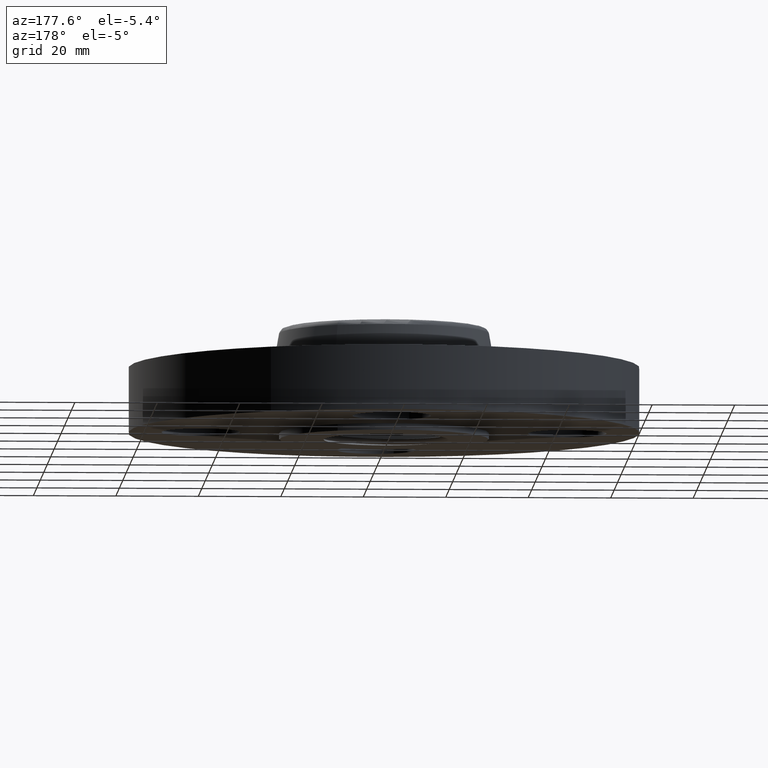
[diagram: clean part render]
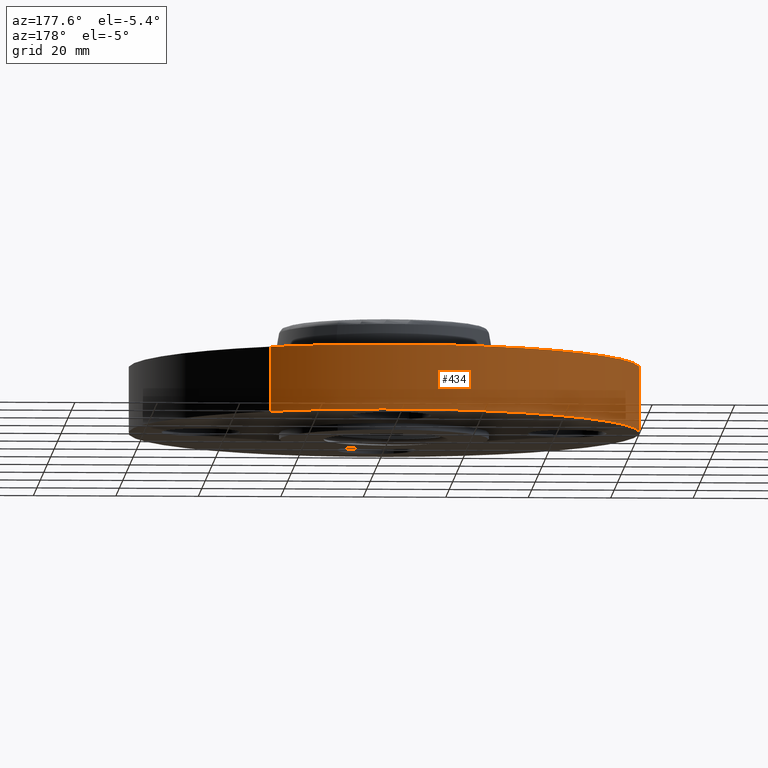
[diagram: same view with one face highlighted and labeled with its STEP entity id]
A machine part, auxiliary view. The second image highlights one B-rep face of the part: STEP entity #434.
In plain terms, the highlighted cylindrical surface (partial cylindrical patch) has radius 61.976 mm, axis along (0, 0, -1).
Its self-contained STEP definition (entity closure, byte-faithful):
#398=AXIS2_PLACEMENT_3D('Cylinder Axis2P3D',#395,#396,#397) ;
#402=AXIS2_PLACEMENT_3D('Circle Axis2P3D',#400,#401,$) ;
#418=AXIS2_PLACEMENT_3D('Circle Axis2P3D',#416,#417,$) ;
#395=CARTESIAN_POINT('Axis2P3D Location',(0.,0.,0.468750000002)) ;
#400=CARTESIAN_POINT('Axis2P3D Location',(0.,0.,2.79741234551E-016)) ;
#404=CARTESIAN_POINT('Vertex',(-1.1697983142,-2.14130145102,2.79741234551E-016)) ;
#406=CARTESIAN_POINT('Vertex',(1.1697983142,2.14130145102,2.79741234551E-016)) ;
#409=CARTESIAN_POINT('Line Origine',(-1.1697983142,-2.14130145102,0.310000000001)) ;
#413=CARTESIAN_POINT('Vertex',(-1.1697983142,-2.14130145102,0.620000000002)) ;
#416=CARTESIAN_POINT('Axis2P3D Location',(0.,0.,0.620000000002)) ;
#420=CARTESIAN_POINT('Vertex',(1.1697983142,2.14130145102,0.620000000002)) ;
#423=CARTESIAN_POINT('Line Origine',(1.1697983142,2.14130145102,0.310000000001)) ;
#396=DIRECTION('Axis2P3D Direction',(0.,0.,-0.0393700787402)) ;
#397=DIRECTION('Axis2P3D XDirection',(0.0188750212049,0.0345504945626,0.)) ;
#401=DIRECTION('Axis2P3D Direction',(0.,0.,-0.0393700787402)) ;
#410=DIRECTION('Vector Direction',(0.,0.,-0.0393700787402)) ;
#417=DIRECTION('Axis2P3D Direction',(0.,0.,-0.0393700787402)) ;
#424=DIRECTION('Vector Direction',(0.,0.,-0.0393700787402)) ;
#411=VECTOR('Line Direction',#410,0.0393700787402) ;
#425=VECTOR('Line Direction',#424,0.0393700787402) ;
#429=ORIENTED_EDGE('',*,*,#408,.F.) ;
#430=ORIENTED_EDGE('',*,*,#415,.T.) ;
#431=ORIENTED_EDGE('',*,*,#422,.T.) ;
#432=ORIENTED_EDGE('',*,*,#427,.F.) ;
#434=ADVANCED_FACE('PartBody',(#433),#399,.T.) ;
#403=CIRCLE('generated circle',#402,2.44000000001) ;
#419=CIRCLE('generated circle',#418,2.44000000001) ;
#399=CYLINDRICAL_SURFACE('generated cylinder',#398,2.44000000001) ;
#408=EDGE_CURVE('',#405,#407,#403,.T.) ;
#415=EDGE_CURVE('',#405,#414,#412,.F.) ;
#422=EDGE_CURVE('',#414,#421,#419,.T.) ;
#427=EDGE_CURVE('',#407,#421,#426,.F.) ;
#428=EDGE_LOOP('',(#429,#430,#431,#432)) ;
#433=FACE_OUTER_BOUND('',#428,.T.) ;
#412=LINE('Line',#409,#411) ;
#426=LINE('Line',#423,#425) ;
#405=VERTEX_POINT('',#404) ;
#407=VERTEX_POINT('',#406) ;
#414=VERTEX_POINT('',#413) ;
#421=VERTEX_POINT('',#420) ;